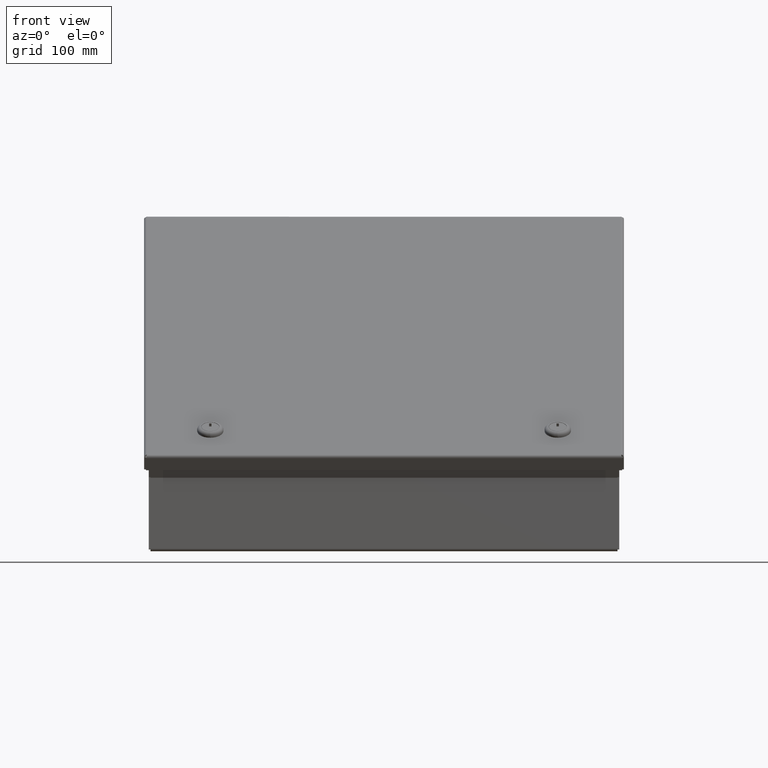
[diagram: clean part render]
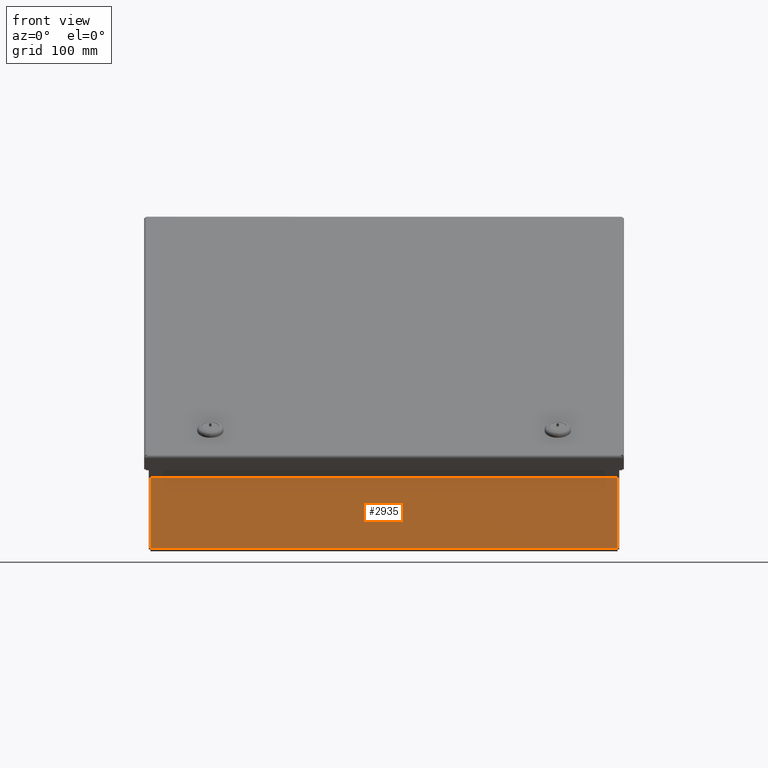
[diagram: same view with one face highlighted and labeled with its STEP entity id]
A machine part, front view. The second image highlights one B-rep face of the part: STEP entity #2935.
In plain terms, the highlighted planar face has unit normal (0, -1, 0).
Its self-contained STEP definition (entity closure, byte-faithful):
#2935 = ADVANCED_FACE( '', ( #7090 ), #7091, .T. );
#7090 = FACE_OUTER_BOUND( '', #17514, .T. );
#7091 = PLANE( '', #17515 );
#17514 = EDGE_LOOP( '', ( #48905, #48906, #48907, #48908 ) );
#17515 = AXIS2_PLACEMENT_3D( '', #48909, #48910, #48911 );
#48905 = ORIENTED_EDGE( '', *, *, #64978, .F. );
#48906 = ORIENTED_EDGE( '', *, *, #66425, .T. );
#48907 = ORIENTED_EDGE( '', *, *, #66426, .T. );
#48908 = ORIENTED_EDGE( '', *, *, #66427, .T. );
#48909 = CARTESIAN_POINT( '', ( 0.000000000000000, -182.308500000000, 1.10698579630227E-014 ) );
#48910 = DIRECTION( '', ( 0.000000000000000, -1.00000000000000, 6.12323399573677E-017 ) );
#48911 = DIRECTION( '', ( 0.000000000000000, -6.12323399573677E-017, -1.00000000000000 ) );
#64978 = EDGE_CURVE( '', #71020, #71021, #71022, .T. );
#66425 = EDGE_CURVE( '', #71020, #73537, #73538, .T. );
#66426 = EDGE_CURVE( '', #73537, #73539, #73540, .T. );
#66427 = EDGE_CURVE( '', #73539, #71021, #73541, .T. );
#71020 = VERTEX_POINT( '', #80314 );
#71021 = VERTEX_POINT( '', #80315 );
#71022 = LINE( '', #80316, #80317 );
#73537 = VERTEX_POINT( '', #87937 );
#73538 = LINE( '', #87938, #87939 );
#73539 = VERTEX_POINT( '', #87940 );
#73540 = LINE( '', #87941, #87942 );
#73541 = LINE( '', #87943, #87944 );
#80314 = CARTESIAN_POINT( '', ( -201.676000000000, -182.308500000000, 63.2314108963919 ) );
#80315 = CARTESIAN_POINT( '', ( 201.676000000000, -182.308500000000, 63.2314108963919 ) );
#80316 = CARTESIAN_POINT( '', ( -201.676000000000, -182.308500000000, 63.2314108963919 ) );
#80317 = VECTOR( '', #104029, 1000.00000000000 );
#87937 = CARTESIAN_POINT( '', ( -201.676000000000, -182.308500000000, 2.33680000000000 ) );
#87938 = CARTESIAN_POINT( '', ( -201.676000000000, -182.308500000000, 1.39679777893409 ) );
#87939 = VECTOR( '', #104751, 1000.00000000000 );
#87940 = CARTESIAN_POINT( '', ( 201.676000000000, -182.308500000000, 2.33680000000000 ) );
#87941 = CARTESIAN_POINT( '', ( -201.676000000000, -182.308500000000, 2.33680000000000 ) );
#87942 = VECTOR( '', #104752, 1000.00000000000 );
#87943 = CARTESIAN_POINT( '', ( 201.676000000000, -182.308500000000, 1.39679777893409 ) );
#87944 = VECTOR( '', #104753, 1000.00000000000 );
#104029 = DIRECTION( '', ( 1.00000000000000, 0.000000000000000, 0.000000000000000 ) );
#104751 = DIRECTION( '', ( -4.26350293833476E-016, -6.12323399573677E-017, -1.00000000000000 ) );
#104752 = DIRECTION( '', ( 1.00000000000000, 0.000000000000000, 0.000000000000000 ) );
#104753 = DIRECTION( '', ( -4.26350293833476E-016, 6.12323399573677E-017, 1.00000000000000 ) );